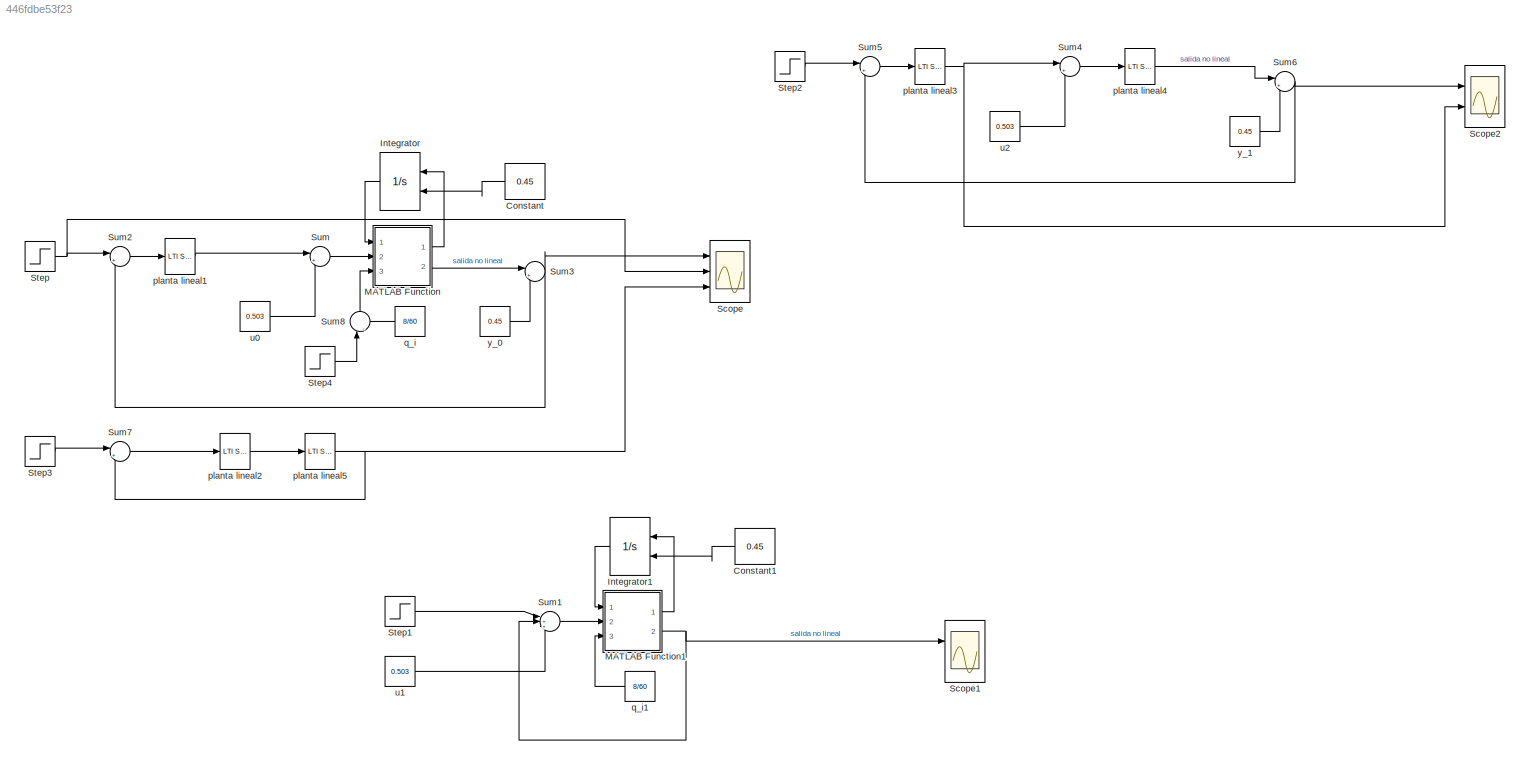
MODEL slx_446fdbe53f23
KIND model
CONFIG AbsTol = auto
CONFIG EnableMultiTasking = off
CONFIG FixedStep = auto
CONFIG MaxStep = auto
CONFIG MinStep = auto
CONFIG RelTol = 1e-3
CONFIG SampleTimeConstraint = Unconstrained
CONFIG SolverName = VariableStepAuto
CONFIG StartTime = 0.0
CONFIG StopTime = 500
BLOCK [Constant] Constant
  Value = 0.45
  VectorParams1D = off
BLOCK [Constant] Constant1
  Commented = on
  Value = 0.45
  VectorParams1D = off
BLOCK [Integrator] Integrator
  InitialConditionSource = external
  Ports = [2, 1]
BLOCK [Integrator] Integrator1
  Commented = on
  InitialConditionSource = external
  Ports = [2, 1]
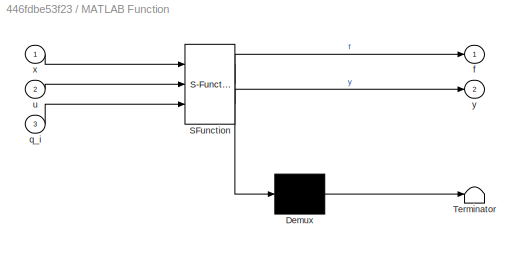
BLOCK [SubSystem] MATLAB Function
  ErrorFcn = Stateflow.Translate.translate
  PermitHierarchicalResolution = ExplicitOnly
  Ports = [3, 2]
  RequestExecContextInheritance = off
  SFBlockType = MATLAB Function
  TreatAsAtomicUnit = on
BLOCK [Demux] MATLAB Function/ Demux 
  Outputs = 1
  Ports = [1, 1]
BLOCK [S-Function] MATLAB Function/ SFunction 
  EnableBusSupport = on
  FunctionName = sf_sfun
  PortCounts = [3 3]
  Ports = [3, 3]
  SFcnIsStateOwnerBlock = off
  SFunctionDeploymentMode = off
  Tag = Stateflow S-Function 2
BLOCK [Terminator] MATLAB Function/ Terminator 
BLOCK [Outport] MATLAB Function/f
BLOCK [Inport] MATLAB Function/q_i
  Port = 3
BLOCK [Inport] MATLAB Function/u
  Port = 2
BLOCK [Inport] MATLAB Function/x
BLOCK [Outport] MATLAB Function/y
  Port = 2
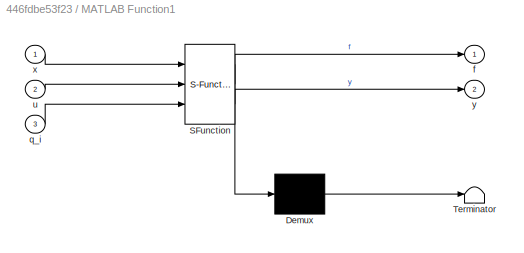
BLOCK [SubSystem] MATLAB Function1
  Commented = on
  ErrorFcn = Stateflow.Translate.translate
  PermitHierarchicalResolution = ExplicitOnly
  Ports = [3, 2]
  RequestExecContextInheritance = off
  SFBlockType = MATLAB Function
  TreatAsAtomicUnit = on
BLOCK [Demux] MATLAB Function1/ Demux 
  Outputs = 1
  Ports = [1, 1]
BLOCK [S-Function] MATLAB Function1/ SFunction 
  EnableBusSupport = on
  FunctionName = sf_sfun
  PortCounts = [3 3]
  Ports = [3, 3]
  SFcnIsStateOwnerBlock = off
  SFunctionDeploymentMode = off
  Tag = Stateflow S-Function 1
BLOCK [Terminator] MATLAB Function1/ Terminator 
BLOCK [Outport] MATLAB Function1/f
BLOCK [Inport] MATLAB Function1/q_i
  Port = 3
BLOCK [Inport] MATLAB Function1/u
  Port = 2
BLOCK [Inport] MATLAB Function1/x
BLOCK [Outport] MATLAB Function1/y
  Port = 2
BLOCK [Scope] Scope
  Floating = off
  NumInputPorts = 3
  Ports = [3]
  ScopeSpecificationString = Simulink.scopes.TimeScopeBlockCfg('CurrentConfiguration', extmgr.ConfigurationSet(extmgr.Configuration('Core','General UI',true),extmgr.Configuration('Core','Source UI',true),extmgr.Configuration('Sources','WiredSimulink',true),extmgr.Configuration('Visuals','Time Domain',true,'SerializedDisplays',{struct('MinYLimReal','-0.1711','MaxYLimReal','0.73512','YLabelReal','','MinYLimMag','0.00000','MaxYL...<+1411ch>
BLOCK [Scope] Scope1
  Commented = on
  Floating = off
  NumInputPorts = 2
  Ports = [2]
  ScopeSpecificationString = Simulink.scopes.TimeScopeBlockCfg('CurrentConfiguration', extmgr.ConfigurationSet(extmgr.Configuration('Core','General UI',true),extmgr.Configuration('Core','Source UI',true),extmgr.Configuration('Sources','WiredSimulink',true,'DataLoggingVariableName','ScopeData1'),extmgr.Configuration('Visuals','Time Domain',true,'SerializedDisplays',{struct('MinYLimReal','-0.05625','MaxYLimReal','0.50625','YLab...<+1492ch>
BLOCK [Scope] Scope2
  Commented = on
  Floating = off
  NumInputPorts = 2
  Ports = [2]
  ScopeSpecificationString = Simulink.scopes.TimeScopeBlockCfg('CurrentConfiguration', extmgr.ConfigurationSet(extmgr.Configuration('Core','General UI',true),extmgr.Configuration('Core','Source UI',true),extmgr.Configuration('Sources','WiredSimulink',true,'DataLoggingVariableName','ScopeData1'),extmgr.Configuration('Visuals','Time Domain',true,'SerializedDisplays',{struct('MinYLimReal','-1.19053','MaxYLimReal','1.1336','YLabe...<+1453ch>
BLOCK [Step] Step
  After = 0.35
  Before = 0.45
  SampleTime = 0
BLOCK [Step] Step1
  After = 1.1 * 0.503
  Commented = on
  SampleTime = 0
  Time = 10
BLOCK [Step] Step2
  After = 1.1 * 0.503
  Commented = on
  SampleTime = 0
  Time = 10
BLOCK [Step] Step3
  After = 0.35
  Before = 0.45
  SampleTime = 0
BLOCK [Step] Step4
  After = 0.1 * 8/60
  SampleTime = 0
BLOCK [Sum] Sum
  Inputs = |++
  Ports = [2, 1]
BLOCK [Sum] Sum1
  Commented = on
  Inputs = |+++
  Ports = [3, 1]
BLOCK [Sum] Sum2
  Inputs = |+-
  Ports = [2, 1]
BLOCK [Sum] Sum3
  Inputs = |+-
  Ports = [2, 1]
BLOCK [Sum] Sum4
  Commented = on
  Inputs = |++
  Ports = [2, 1]
BLOCK [Sum] Sum5
  Commented = on
  Inputs = |+-
  Ports = [2, 1]
BLOCK [Sum] Sum6
  Commented = on
  Inputs = |++
  Ports = [2, 1]
BLOCK [Sum] Sum7
  Inputs = |+-
  Ports = [2, 1]
BLOCK [Sum] Sum8
  Inputs = |-+
  NameLocation = right
  Ports = [2, 1]
BLOCK [Reference] planta lineal1  REF=cstblocks/LTI System
  Ports = [1, 1]
  SourceBlock = cstblocks/LTI System
  SourceProductBaseCode = CT
  SourceType = LTI Block
BLOCK [Reference] planta lineal2  REF=cstblocks/LTI System
  Ports = [1, 1]
  SourceBlock = cstblocks/LTI System
  SourceProductBaseCode = CT
  SourceType = LTI Block
BLOCK [Reference] planta lineal3  REF=cstblocks/LTI System
  Commented = on
  Ports = [1, 1]
  SourceBlock = cstblocks/LTI System
  SourceProductBaseCode = CT
  SourceType = LTI Block
BLOCK [Reference] planta lineal4  REF=cstblocks/LTI System
  Commented = on
  Ports = [1, 1]
  SourceBlock = cstblocks/LTI System
  SourceProductBaseCode = CT
  SourceType = LTI Block
BLOCK [Reference] planta lineal5  REF=cstblocks/LTI System
  Ports = [1, 1]
  SourceBlock = cstblocks/LTI System
  SourceProductBaseCode = CT
  SourceType = LTI Block
BLOCK [Constant] q_i
  NameLocation = top
  Value = 8/60
BLOCK [Constant] q_i1
  Commented = on
  NameLocation = top
  Value = 8/60
BLOCK [Constant] u0
  Value = 0.503
BLOCK [Constant] u1
  Commented = on
  Value = 0.503
BLOCK [Constant] u2
  Commented = on
  Value = 0.503
BLOCK [Constant] y_0
  Value = 0.45
BLOCK [Constant] y_1
  Commented = on
  Value = 0.45
LINE Constant1:1 -> Integrator1:2
LINE Constant:1 -> Integrator:2
LINE Integrator1:1 -> MATLAB Function1:1
LINE Integrator:1 -> MATLAB Function:1
LINE MATLAB Function1:1 -> Integrator1:1
NET MATLAB Function1:2 -> Scope1:1, Sum1:2
LINE MATLAB Function:1 -> Integrator:1
LINE MATLAB Function:2 -> Sum3:1
LINE Step1:1 -> Sum1:1
LINE Step2:1 -> Sum5:1
LINE Step3:1 -> Sum7:1
LINE Step4:1 -> Sum8:1
NET Step:1 -> Scope:2, Sum2:1
LINE Sum1:1 -> MATLAB Function1:2
LINE Sum2:1 -> planta lineal1:1
NET Sum3:1 -> Scope:1, Sum2:2
LINE Sum4:1 -> planta lineal4:1
LINE Sum5:1 -> planta lineal3:1
NET Sum6:1 -> Scope2:1, Sum5:2
LINE Sum7:1 -> planta lineal2:1
LINE Sum8:1 -> MATLAB Function:3
LINE Sum:1 -> MATLAB Function:2
LINE planta lineal1:1 -> Sum:1
LINE planta lineal2:1 -> planta lineal5:1
NET planta lineal3:1 -> Scope2:2, Sum4:1
LINE planta lineal4:1 -> Sum6:1
NET planta lineal5:1 -> Scope:3, Sum7:2
LINE q_i1:1 -> MATLAB Function1:3
LINE q_i:1 -> Sum8:2
LINE u0:1 -> Sum:2
LINE u1:1 -> Sum1:3
LINE u2:1 -> Sum4:2
LINE y_0:1 -> Sum3:2
LINE y_1:1 -> Sum6:2
note: NET lines group one-source signal fan-out (src -> all destinations, sorted); 1:1 wires keep LINE
CHART MATLAB Function1 states=1 transitions=1
  STATE_LABEL 'eML_blk_kernel()'
  STATE_LABEL 'SCRIPT:\nfunction [f,y] = fcn(x,u,q_i)\nd_2 = 10.65/1000 %metros diametro canio de salida\nl_1 = 10/100%metros lado base inferior\nl_2 = 40/100%metros lado base superior\nl = 0.9%metros de la base del tanque al tope.\ng = 9.81%metros/seg**2, gravedad Asumo que x1_punto eq = 0 (no hay variacion de altura)\n\nf = ((q_i/1000 - (u*pi*(d_2^2/4)*(sqrt(2*g*x(1)))))/(l_1+(l_2-l_1)*(x(1)/l))^2);\n\ny = x(1);\n'
CHART MATLAB Function states=1 transitions=1
  STATE_LABEL 'eML_blk_kernel()'
  STATE_LABEL 'SCRIPT:\nfunction [f,y] = fcn(x,u,q_i)\nd_2 = 10.65/1000 %metros diametro canio de salida\nl_1 = 10/100%metros lado base inferior\nl_2 = 40/100%metros lado base superior\nl = 0.9%metros de la base del tanque al tope.\ng = 9.81%metros/seg**2, gravedad Asumo que x1_punto eq = 0 (no hay variacion de altura)\n\nf = ((q_i/1000 - (u*pi*(d_2^2/4)*(sqrt(2*g*x(1)))))/(l_1+(l_2-l_1)*(x(1)/l))^2);\n\ny = x(1);\n'
CHART  states=0 transitions=0
CHART  states=0 transitions=0
